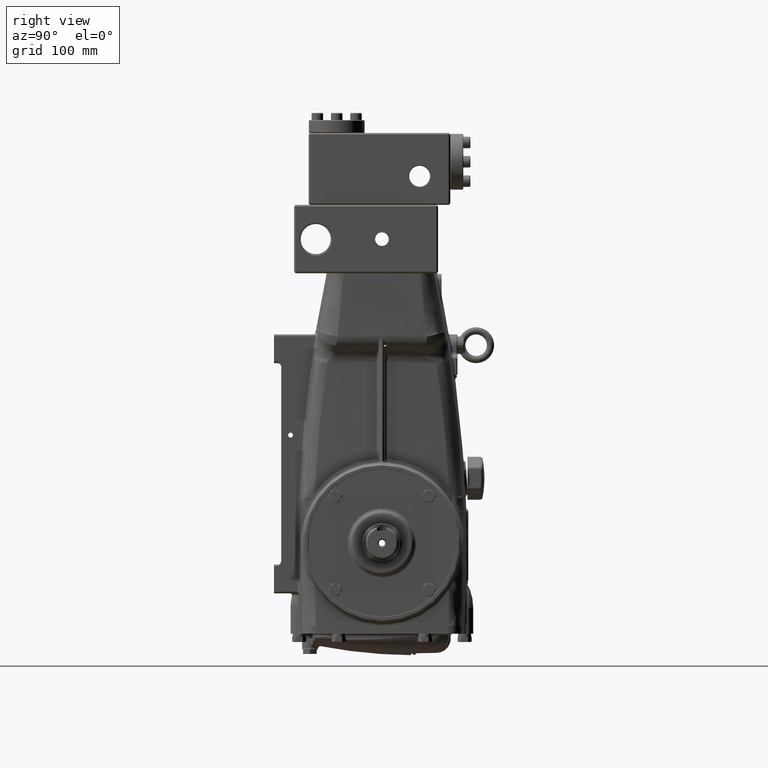
[diagram: clean part render]
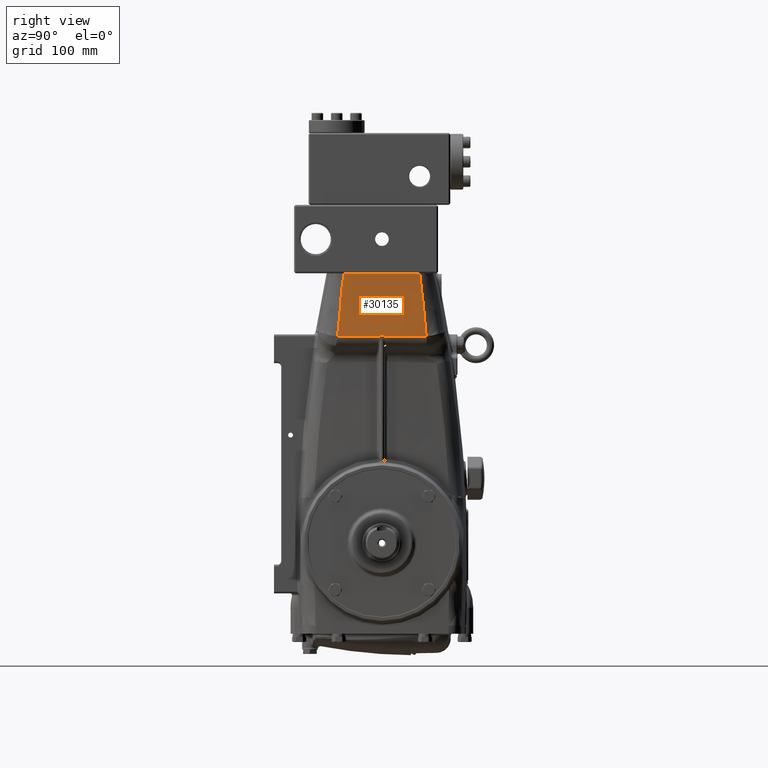
[diagram: same view with one face highlighted and labeled with its STEP entity id]
A machine part, right view. The second image highlights one B-rep face of the part: STEP entity #30135.
In plain terms, the highlighted cylindrical surface (partial cylindrical patch) has radius 1800 mm, axis along (0, 0, 1).
Its self-contained STEP definition (entity closure, byte-faithful):
#149 = CARTESIAN_POINT ( 'NONE',  ( 5.903376586306757545, -2.425053475419854276, 11.30089932007131459 ) ) ;
#171 = CARTESIAN_POINT ( 'NONE',  ( 5.904553106994017142, -2.390518213632213840, 11.29603228531315295 ) ) ;
#2413 = CARTESIAN_POINT ( 'NONE',  ( 5.911517264726246168, 2.174410796057816952, 14.14824494702000734 ) ) ;
#3006 = CARTESIAN_POINT ( 'NONE',  ( -64.92125984251968873, 0.000000000000000000, 10.03937007874015563 ) ) ;
#3214 = CARTESIAN_POINT ( 'NONE',  ( 5.909213097416705196, 2.248207726002552587, 13.34996992752380507 ) ) ;
#4027 = EDGE_CURVE ( 'NONE', #23407, #49394, #53100, .T. ) ;
#5379 = CARTESIAN_POINT ( 'NONE',  ( 5.911517855878886785, -2.174391538656208489, 14.14824531158499354 ) ) ;
#5777 = CARTESIAN_POINT ( 'NONE',  ( 5.907646914635833468, -2.297126142027852147, 12.38762192757896763 ) ) ;
#7517 = ORIENTED_EDGE ( 'NONE', *, *, #10270, .F. ) ;
#8203 = DIRECTION ( 'NONE',  ( -1.000000000000000000, 0.000000000000000000, 0.000000000000000000 ) ) ;
#8221 = CARTESIAN_POINT ( 'NONE',  ( 5.903375805935151099, 2.425076266536521086, 11.30089893811133983 ) ) ;
#10270 = EDGE_CURVE ( 'NONE', #77432, #23407, #54737, .T. ) ;
#10999 = CARTESIAN_POINT ( 'NONE',  ( 5.904489397751674140, -2.392380156605373287, 11.49645161220571410 ) ) ;
#11400 = CARTESIAN_POINT ( 'NONE',  ( 5.905707758907837501, -2.356099438346549668, 11.75214680178590143 ) ) ;
#12213 = CARTESIAN_POINT ( 'NONE',  ( 5.903963162494292760, -2.407929378425377465, 11.29742786593187809 ) ) ;
#13637 = CARTESIAN_POINT ( 'NONE',  ( 5.904488623069455322, 2.392403090745028216, 11.49645109969181256 ) ) ;
#14434 = CARTESIAN_POINT ( 'NONE',  ( 5.913609629004191959, 2.105146674887129699, 14.56370341251854406 ) ) ;
#15506 = VERTEX_POINT ( 'NONE', #8221 ) ;
#16341 = VERTEX_POINT ( 'NONE', #23862 ) ;
#17721 = CARTESIAN_POINT ( 'NONE',  ( 5.905145041411413054, 2.372849602808741132, 11.29664845096411518 ) ) ;
#18037 = VERTEX_POINT ( 'NONE', #17721 ) ;
#18078 = CARTESIAN_POINT ( 'NONE',  ( 5.903375805935151099, 2.425076266536521086, 11.30089893811133983 ) ) ;
#18086 = ORIENTED_EDGE ( 'NONE', *, *, #4027, .F. ) ;
#18161 = CARTESIAN_POINT ( 'NONE',  ( 5.908123482531171256, -2.282277950662919608, 12.70826757066264179 ) ) ;
#19353 = ORIENTED_EDGE ( 'NONE', *, *, #52731, .F. ) ;
#19620 = CARTESIAN_POINT ( 'NONE',  ( 5.905706997040113038, 2.356122341130363118, 11.75214630435105434 ) ) ;
#20391 = CARTESIAN_POINT ( 'NONE',  ( 5.914227009470329754, 2.084267783888084757, 14.66361542116591821 ) ) ;
#20430 = CARTESIAN_POINT ( 'NONE',  ( 5.904552380381102417, 2.390539746356893591, 11.29603152895585083 ) ) ;
#23136 = CARTESIAN_POINT ( 'NONE',  ( 5.931635035572393910, 1.582158507343740528, 11.32422283085098513 ) ) ;
#23407 = VERTEX_POINT ( 'NONE', #57097 ) ;
#23743 = EDGE_CURVE ( 'NONE', #49394, #16341, #30608, .T. ) ;
#23862 = CARTESIAN_POINT ( 'NONE',  ( 5.914850108854505351, -2.062903530685586961, 14.76377952755905376 ) ) ;
#25232 = EDGE_LOOP ( 'NONE', ( #75367, #50826, #18086, #7517, #78738, #19353, #59291 ) ) ;
#26800 = CARTESIAN_POINT ( 'NONE',  ( 5.908122798201683068, 2.282299193488263267, 12.70826722450663482 ) ) ;
#27250 = EDGE_CURVE ( 'NONE', #18037, #77432, #49118, .T. ) ;
#27601 = CARTESIAN_POINT ( 'NONE',  ( 5.907646200348552590, 2.297148171815059925, 12.38762160986817484 ) ) ;
#30135 = ADVANCED_FACE ( 'NONE', ( #39809 ), #39016, .T. ) ;
#30187 = CARTESIAN_POINT ( 'NONE',  ( 5.909829124965323643, -2.228946781885739803, 13.67102777120388168 ) ) ;
#30608 = B_SPLINE_CURVE_WITH_KNOTS ( 'NONE', 3,
 ( #149, #79015, #10999, #11400, #42604, #5777, #18161, #66635, #30187, #5379, #48578, #41810, #35785, #41017 ),
 .UNSPECIFIED., .F., .F.,
 ( 4, 2, 2, 2, 2, 2, 4 ),
 ( 0.000000000000000000, 0.08584337284218852837, 0.2235932534488226375, 0.4990930146620909946, 0.7745927758753593517, 0.9123426564819934192, 1.000000000000000000 ),
 .UNSPECIFIED. ) ;
#30825 = CARTESIAN_POINT ( 'NONE',  ( -64.92125984251968873, 0.000000000000000000, 14.76377952755905376 ) ) ;
#32821 = CARTESIAN_POINT ( 'NONE',  ( 5.914849519459009386, 2.062923769285555764, 14.76377952755905376 ) ) ;
#33611 = CARTESIAN_POINT ( 'NONE',  ( 5.912206697166975111, 2.151948128830377005, 14.30657796966575823 ) ) ;
#35168 = CARTESIAN_POINT ( 'NONE',  ( 5.944881889763779625, 0.7911347092868183939, 11.33801195392740269 ) ) ;
#35785 = CARTESIAN_POINT ( 'NONE',  ( 5.914227599197565688, -2.084247742740370501, 14.66361547180797587 ) ) ;
#35809 = CARTESIAN_POINT ( 'NONE',  ( 5.903376586306757545, -2.425053475419854276, 11.30089932007131459 ) ) ;
#39016 = CYLINDRICAL_SURFACE ( 'NONE', #77897, 70.86614173228348079 ) ;
#39809 = FACE_OUTER_BOUND ( 'NONE', #25232, .T. ) ;
#41017 = CARTESIAN_POINT ( 'NONE',  ( 5.914850108854505351, -2.062903530685586961, 14.76377952755905376 ) ) ;
#41810 = CARTESIAN_POINT ( 'NONE',  ( 5.913610218593416512, -2.105126837609964330, 14.56370351022403753 ) ) ;
#42604 = CARTESIAN_POINT ( 'NONE',  ( 5.906275222193402286, -2.338913188525424847, 11.91053852642907707 ) ) ;
#48480 = EDGE_CURVE ( 'NONE', #60110, #15506, #70552, .T. ) ;
#48578 = CARTESIAN_POINT ( 'NONE',  ( 5.912207285789915723, -2.151928757434003803, 14.30657826479203365 ) ) ;
#48595 = CARTESIAN_POINT ( 'NONE',  ( 5.905145740766999829, -2.372828727882712929, 11.29664917894829834 ) ) ;
#49118 =( BOUNDED_CURVE ( )  B_SPLINE_CURVE ( 3, ( #65237, #23136, #35168, #59604 ),
 .UNSPECIFIED., .F., .F. ) 
 B_SPLINE_CURVE_WITH_KNOTS ( ( 4, 4 ),
 ( 6.249695502958979354, 6.283185307179586232 ),
 .UNSPECIFIED. ) 
 CURVE ( )  GEOMETRIC_REPRESENTATION_ITEM ( )  RATIONAL_B_SPLINE_CURVE ( ( 1.000000000000000000, 0.9999065382682942316, 0.9999065382682942316, 1.000000000000000000 ) ) 
 REPRESENTATION_ITEM ( '' )  );
#49394 = VERTEX_POINT ( 'NONE', #56872 ) ;
#50297 = AXIS2_PLACEMENT_3D ( 'NONE', #30825, #72495, #78492 ) ;
#50826 = ORIENTED_EDGE ( 'NONE', *, *, #23743, .F. ) ;
#52403 = CARTESIAN_POINT ( 'NONE',  ( 5.903375805935151099, 2.425076266536521086, 11.30089893811133983 ) ) ;
#52731 = EDGE_CURVE ( 'NONE', #15506, #18037, #65540, .T. ) ;
#53034 = CARTESIAN_POINT ( 'NONE',  ( 5.944881889763789395, 0.000000000000000000, 11.33801195392741334 ) ) ;
#53100 = B_SPLINE_CURVE_WITH_KNOTS ( 'NONE', 3,
 ( #48595, #171, #12213, #35809 ),
 .UNSPECIFIED., .F., .F.,
 ( 4, 4 ),
 ( 0.000000000000000000, 1.000000000000000000 ),
 .UNSPECIFIED. ) ;
#54737 =( BOUNDED_CURVE ( )  B_SPLINE_CURVE ( 3, ( #53034, #58670, #71476, #74805 ),
 .UNSPECIFIED., .F., .T. ) 
 B_SPLINE_CURVE_WITH_KNOTS ( ( 4, 4 ),
 ( 0.000000000000000000, 0.03348950948694121021 ),
 .UNSPECIFIED. ) 
 CURVE ( )  GEOMETRIC_REPRESENTATION_ITEM ( )  RATIONAL_B_SPLINE_CURVE ( ( 1.000000000000000000, 0.9999065399133055809, 0.9999065399133055809, 1.000000000000000000 ) ) 
 REPRESENTATION_ITEM ( '' )  );
#56872 = CARTESIAN_POINT ( 'NONE',  ( 5.903376586306757545, -2.425053475419854276, 11.30089932007131459 ) ) ;
#57097 = CARTESIAN_POINT ( 'NONE',  ( 5.905145740766999829, -2.372828727882712929, 11.29664917894829834 ) ) ;
#58046 = CARTESIAN_POINT ( 'NONE',  ( 5.909828517264556602, 2.228966093811306948, 13.67102729412266626 ) ) ;
#58670 = CARTESIAN_POINT ( 'NONE',  ( 5.944881889763780514, -0.7911277460980798981, 11.33801195392740446 ) ) ;
#59291 = ORIENTED_EDGE ( 'NONE', *, *, #48480, .F. ) ;
#59604 = CARTESIAN_POINT ( 'NONE',  ( 5.944881889763789395, 0.000000000000000000, 11.33801195392741334 ) ) ;
#60110 = VERTEX_POINT ( 'NONE', #61602 ) ;
#60940 = CARTESIAN_POINT ( 'NONE',  ( 5.903962408710885512, 2.407951554048616050, 11.29742721572943687 ) ) ;
#61602 = CARTESIAN_POINT ( 'NONE',  ( 5.914849519459009386, 2.062923769285555764, 14.76377952755905376 ) ) ;
#62483 = CARTESIAN_POINT ( 'NONE',  ( 5.903939363423456932, 2.408604395479431837, 11.39865522885220450 ) ) ;
#62517 = CARTESIAN_POINT ( 'NONE',  ( 5.905145041411413054, 2.372849602808741132, 11.29664845096411518 ) ) ;
#62584 = EDGE_CURVE ( 'NONE', #16341, #60110, #69350, .T. ) ;
#63855 = DIRECTION ( 'NONE',  ( 0.000000000000000000, 0.000000000000000000, 1.000000000000000000 ) ) ;
#65237 = CARTESIAN_POINT ( 'NONE',  ( 5.905145041411413054, 2.372849602808741132, 11.29664845096411518 ) ) ;
#65540 = B_SPLINE_CURVE_WITH_KNOTS ( 'NONE', 3,
 ( #18078, #60940, #20430, #62517 ),
 .UNSPECIFIED., .F., .F.,
 ( 4, 4 ),
 ( 0.000000000000000000, 1.000000000000000000 ),
 .UNSPECIFIED. ) ;
#66635 = CARTESIAN_POINT ( 'NONE',  ( 5.909213728288501777, -2.248187844935855662, 13.34997035392672693 ) ) ;
#69350 = CIRCLE ( 'NONE', #50297, 70.86614173228348079 ) ;
#70552 = B_SPLINE_CURVE_WITH_KNOTS ( 'NONE', 3,
 ( #32821, #20391, #14434, #33611, #2413, #58046, #3214, #26800, #27601, #74477, #19620, #13637, #62483, #52403 ),
 .UNSPECIFIED., .F., .F.,
 ( 4, 2, 2, 2, 2, 2, 4 ),
 ( 0.000000000000000000, 0.08765735607838955057, 0.2254072537088450678, 0.5009070489697559081, 0.7764068442306669704, 0.9141567418611222795, 1.000000000000000000 ),
 .UNSPECIFIED. ) ;
#70955 = CARTESIAN_POINT ( 'NONE',  ( 5.944881889763789395, 0.000000000000000000, 11.33801195392741334 ) ) ;
#71476 = CARTESIAN_POINT ( 'NONE',  ( 5.931635268734507527, -1.582144583894554923, 11.32422307355774826 ) ) ;
#72495 = DIRECTION ( 'NONE',  ( -0.000000000000000000, 0.000000000000000000, 1.000000000000000000 ) ) ;
#74477 = CARTESIAN_POINT ( 'NONE',  ( 5.906274471226467426, 2.338935930794351581, 11.91053809308487743 ) ) ;
#74805 = CARTESIAN_POINT ( 'NONE',  ( 5.905145740766999829, -2.372828727882712929, 11.29664917894829834 ) ) ;
#75367 = ORIENTED_EDGE ( 'NONE', *, *, #62584, .F. ) ;
#77432 = VERTEX_POINT ( 'NONE', #70955 ) ;
#77897 = AXIS2_PLACEMENT_3D ( 'NONE', #3006, #63855, #8203 ) ;
#78492 = DIRECTION ( 'NONE',  ( -1.000000000000000000, 0.000000000000000000, 0.000000000000000000 ) ) ;
#78738 = ORIENTED_EDGE ( 'NONE', *, *, #27250, .F. ) ;
#79015 = CARTESIAN_POINT ( 'NONE',  ( 5.903940141188471991, -2.408581525081090025, 11.39865567456523365 ) ) ;